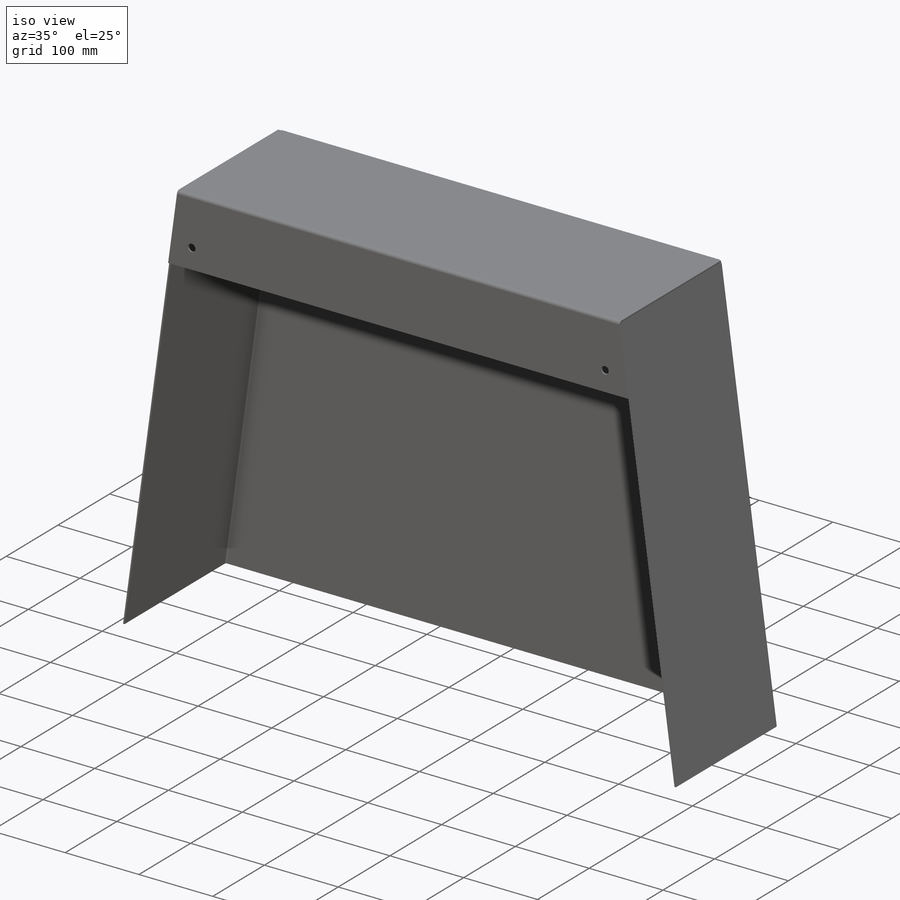
[diagram: iso view]
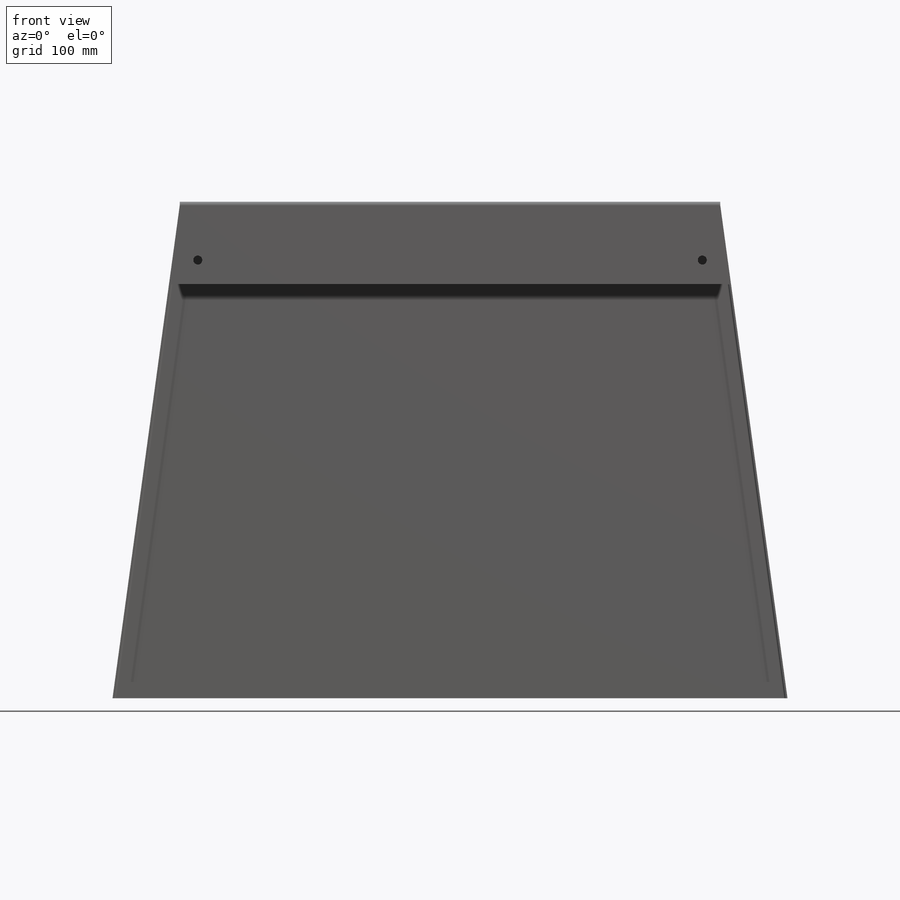
[diagram: front view]
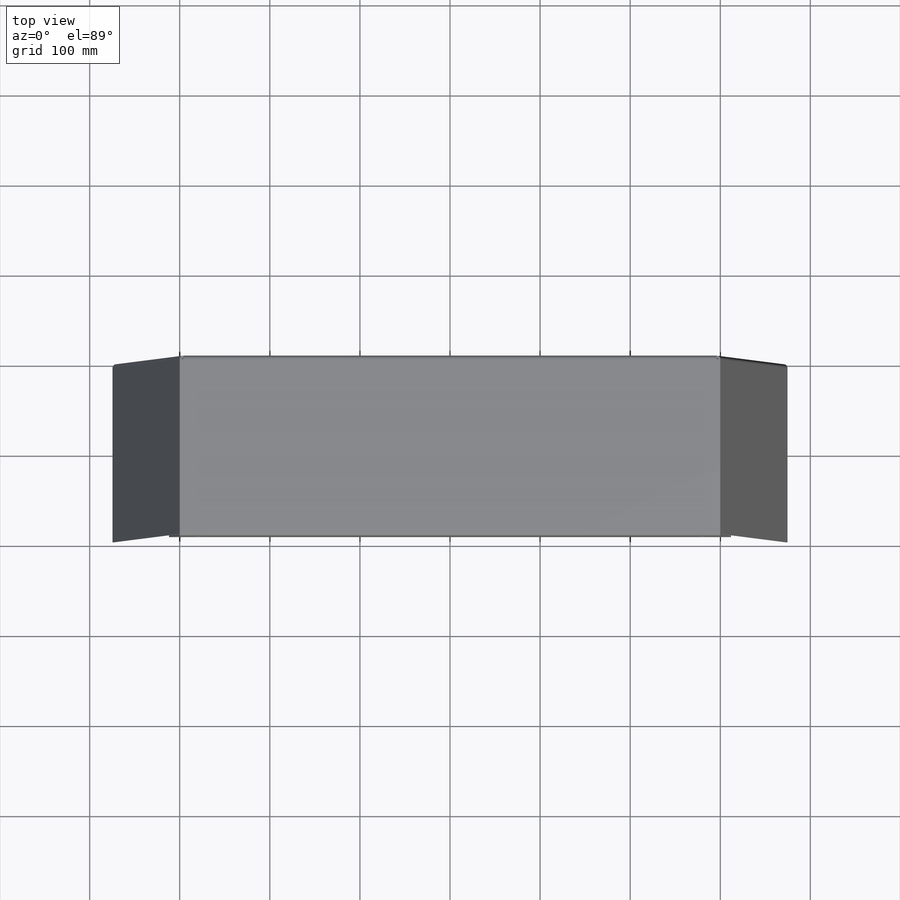
[diagram: top view]
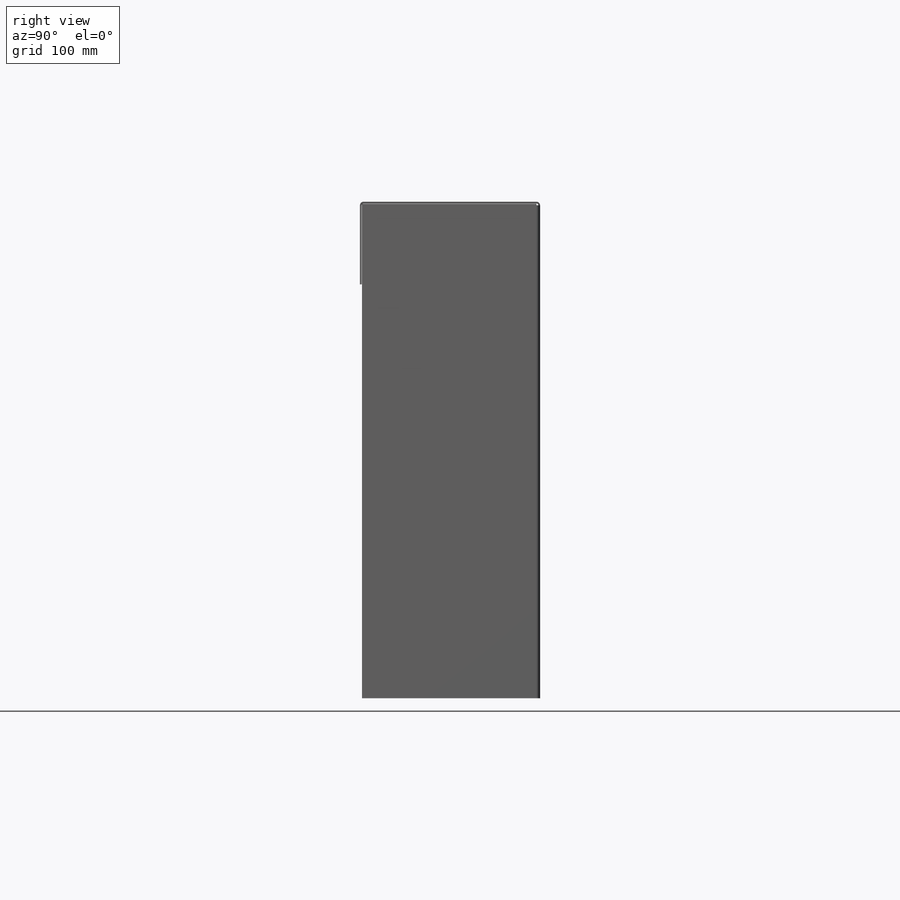
[diagram: right view]
SOLIDWORKS PART (.sldprt)
format: sldprt  version: not decoded by parser v0  size: 500,736 bytes
history: native  units: mm
features: sketch x20, plane x6, cut_extrude x5, extrude x5, sheet_metal_op x3, delete_body x3, fillet x2, material x1, mirror x1 + 2 further entries (+8 scaffold rows collapsed; 1 parser-record rows omitted)
feature tree (57):
  scaffold x8  (default folders/planes/origin — collapsed)
  material  "Material <nicht festgelegt>"
  plane  "Ebene vorne"
  plane  "Ebene oben"
  plane  "Ebene rechts"
  sketch  "Skizze1"  dims[D1=550.0mm D2=750.0mm D3=300.0mm D4=300.0mm]
  sheet_metal_op  "Blech1"
  sheet_metal_op  "Basis-Blech1"
  sketch  "Skizze6"  dims[c1.D1=2.0mm c1.D4=90.0deg c1.D5=1.0 c1.D8=1.0mm c1.D9=1.0mm c2.D1=2.0mm c2.D2=500.0mm c2.D3=0.0mm c2.D6=10.0mm c2.D7=200.0mm]
  sketch  "Skizze7"  dims[D1=2.74mm]
  cut_extrude  "Schnitt-Linear austragen1"  Depth=10mm Kante-Lasche2=0
  sketch  "Skizze10"
  sheet_metal_op  "Kantenbiegung2"
  sketch  "Skizze11"
  extrude  "Aufsatz-Linear austragen1"  Depth=2mm
  sketch  "Skizze25"  dims[D1=10.0mm D2=10.0mm D3=560.0mm D4=280.0mm]
  cut_extrude  "Schnitt-Linear austragen4"  Depth=2mm
  plane  "Ebene2"
  sketch  "Skizze41"
  cut_extrude  "Schnitt-Linear austragen6"  Depth=4mm
  sketch  "Skizze42"
  cut_extrude  "Schnitt-Linear austragen7"  Depth=4mm
  sketch  "Skizze48"  dims[c1.D1=2.0mm c2.D1=90.0deg c3.D1=0.0mm]
  sketch  "Skizze60"  dims[c1.D1=~552.639253mm c2.D1=~179.764417deg c3.D1=2.0mm c3.D2=2.0mm]
  extrude  "Aufsatz-Linear austragen2"  Depth=195.7mm
  sketch  "Skizze61"  dims[D1=0.2mm D2=0.2mm D3=2.2mm D4=0.2mm]
  extrude  "Aufsatz-Linear austragen4"  Depth=2mm
  sketch  "Skizze63"
  cut_extrude  "Schnitt-Linear austragen10"  [1 undecoded]
  fillet  "Verrundung1"  Radius=4mm
  fillet  "Verrundung2"  Radius=2mm
  sketch  "Skizze65"
  sketch  "Skizze66"  dims[D1=0.0mm D2=0.0mm]
  extrude  "Aufsatz-Linear austragen6"  Depth=2mm
  sketch  "Skizze67"  dims[D1=0.0mm D2=0.0mm]
  extrude  "Aufsatz-Linear austragen7"  Depth=1mm
  sketch  "Skizze68"  dims[c1.D1=0.0mm c1.D2=0.0mm c2.D1=~0.35073mm]
  sketch  "Skizze70"  dims[D1=0.2mm D2=0.2mm]
  delete_body  "Körper-Löschen1"
  delete_body  "Körper-Löschen2"
  delete_body  "Körper-Löschen3"
  mirror  "Spiegeln1"
  sketch  "Skizze74"
  plane  "Ebene5"
  plane  "Ebene6"  Offset=2mm
  "Abwicklung1"
  sketch  "Biegung-Linien1"
  sketch  "Rahmen1"
  "Abwickeln-<Kantenbiegung2>1"
  parser-record x1  (decoder bookkeeping rows leaked as tree rows — omitted from the tree; the rows remain in map.json)
decode coverage: 22 of 39 modeling features carry decoded parameters; 2 rows unclassified (native names shown)
note: ~ marks probable driven/reference dimensions
note: 1 parameter value undecoded
note: suppression state not decoded; provenance and decode notes live in map.json
